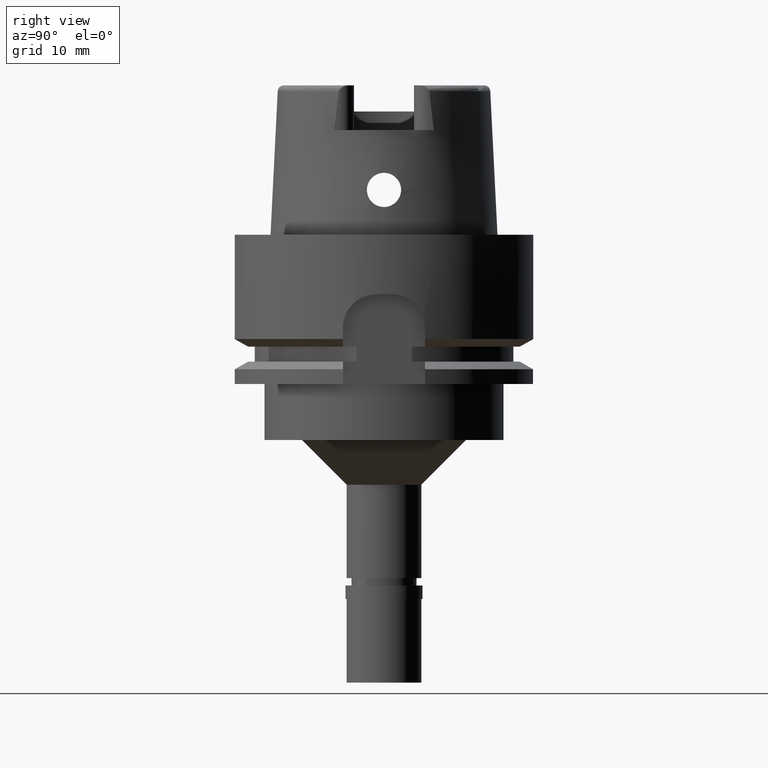
[diagram: clean part render]
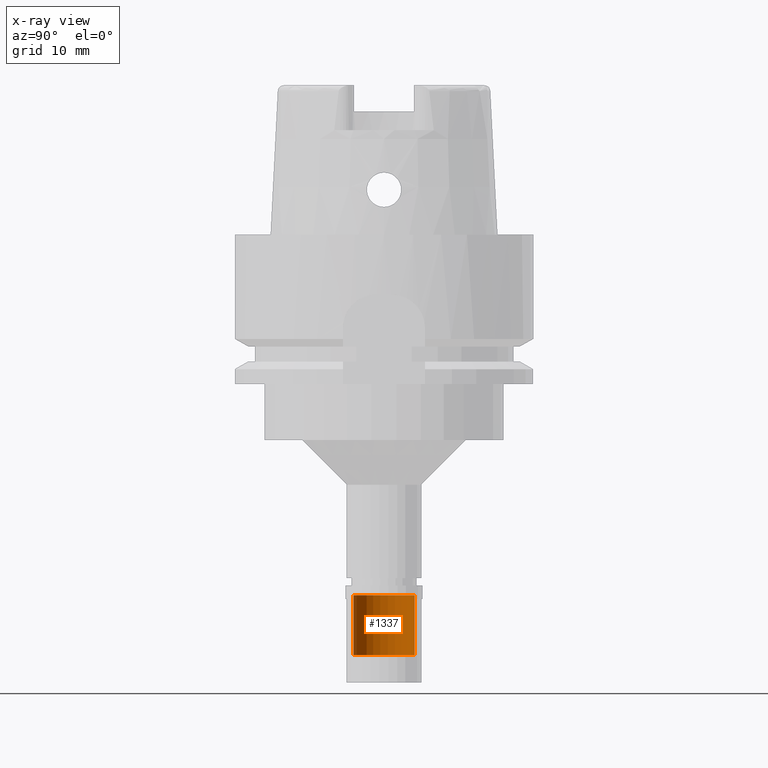
[diagram: x-ray — body ghosted, one internal face saturated and labeled with its STEP entity id]
A machine part, right view, then the same camera in x-ray: the body is ghosted and one INTERNAL B-rep face — a face not visible from any outside direction — is saturated and labeled: STEP entity #1337.
In plain terms, the highlighted cylindrical surface (edge-blend (fillet) strip) has radius 4.1 mm, axis along (0, 0, 1).
Its self-contained STEP definition (entity closure, byte-faithful):
#128 = CARTESIAN_POINT ( 'NONE',  ( 0.0000000000000000000, -4.100000000000000533, -48.30000000000000426 ) ) ;
#342 = FACE_OUTER_BOUND ( 'NONE', #3062, .T. ) ;
#387 = CARTESIAN_POINT ( 'NONE',  ( 0.0000000000000000000, 0.0000000000000000000, -60.11500000000000199 ) ) ;
#603 = DIRECTION ( 'NONE',  ( 0.0000000000000000000, -1.000000000000000000, 0.0000000000000000000 ) ) ;
#617 = EDGE_CURVE ( 'NONE', #3108, #3638, #2522, .T. ) ;
#755 = VECTOR ( 'NONE', #3707, 1000.000000000000000 ) ;
#851 = CARTESIAN_POINT ( 'NONE',  ( 0.0000000000000000000, 0.0000000000000000000, -56.30000000000000426 ) ) ;
#922 = CARTESIAN_POINT ( 'NONE',  ( 0.0000000000000000000, 4.100000000000000533, -48.30000000000000426 ) ) ;
#969 = ORIENTED_EDGE ( 'NONE', *, *, #617, .T. ) ;
#1013 = DIRECTION ( 'NONE',  ( 0.0000000000000000000, 0.0000000000000000000, -1.000000000000000000 ) ) ;
#1047 = CARTESIAN_POINT ( 'NONE',  ( 0.0000000000000000000, -4.100000000000000533, -48.30000000000000426 ) ) ;
#1083 = EDGE_CURVE ( 'NONE', #2652, #3108, #4435, .T. ) ;
#1154 = EDGE_CURVE ( 'NONE', #2652, #2539, #3771, .T. ) ;
#1250 = DIRECTION ( 'NONE',  ( 0.0000000000000000000, 0.0000000000000000000, 1.000000000000000000 ) ) ;
#1337 = ADVANCED_FACE ( 'NONE', ( #342 ), #4045, .T. ) ;
#1906 = DIRECTION ( 'NONE',  ( 0.0000000000000000000, 0.0000000000000000000, -1.000000000000000000 ) ) ;
#2066 = DIRECTION ( 'NONE',  ( 0.0000000000000000000, 0.0000000000000000000, 1.000000000000000000 ) ) ;
#2522 = LINE ( 'NONE', #922, #755 ) ;
#2539 = VERTEX_POINT ( 'NONE', #3025 ) ;
#2652 = VERTEX_POINT ( 'NONE', #1047 ) ;
#2695 = CARTESIAN_POINT ( 'NONE',  ( 0.0000000000000000000, 4.100000000000000533, -48.30000000000000426 ) ) ;
#3025 = CARTESIAN_POINT ( 'NONE',  ( 0.0000000000000000000, -4.100000000000000533, -56.30000000000000426 ) ) ;
#3062 = EDGE_LOOP ( 'NONE', ( #3192, #4090, #4754, #969 ) ) ;
#3108 = VERTEX_POINT ( 'NONE', #2695 ) ;
#3192 = ORIENTED_EDGE ( 'NONE', *, *, #3630, .T. ) ;
#3226 = CIRCLE ( 'NONE', #4611, 4.100000000000000533 ) ;
#3240 = CARTESIAN_POINT ( 'NONE',  ( 0.0000000000000000000, 4.100000000000000533, -56.30000000000000426 ) ) ;
#3263 = DIRECTION ( 'NONE',  ( 0.0000000000000000000, 1.000000000000000000, 0.0000000000000000000 ) ) ;
#3602 = DIRECTION ( 'NONE',  ( 0.0000000000000000000, 1.000000000000000000, 0.0000000000000000000 ) ) ;
#3630 = EDGE_CURVE ( 'NONE', #3638, #2539, #3226, .T. ) ;
#3638 = VERTEX_POINT ( 'NONE', #3240 ) ;
#3707 = DIRECTION ( 'NONE',  ( 0.0000000000000000000, 0.0000000000000000000, -1.000000000000000000 ) ) ;
#3771 = LINE ( 'NONE', #128, #4604 ) ;
#3795 = CARTESIAN_POINT ( 'NONE',  ( 0.0000000000000000000, 0.0000000000000000000, -48.30000000000000426 ) ) ;
#4045 = CYLINDRICAL_SURFACE ( 'NONE', #4858, 4.100000000000000533 ) ;
#4090 = ORIENTED_EDGE ( 'NONE', *, *, #1154, .F. ) ;
#4435 = CIRCLE ( 'NONE', #5112, 4.100000000000000533 ) ;
#4604 = VECTOR ( 'NONE', #1906, 1000.000000000000000 ) ;
#4611 = AXIS2_PLACEMENT_3D ( 'NONE', #851, #2066, #3263 ) ;
#4754 = ORIENTED_EDGE ( 'NONE', *, *, #1083, .T. ) ;
#4858 = AXIS2_PLACEMENT_3D ( 'NONE', #387, #1250, #3602 ) ;
#5112 = AXIS2_PLACEMENT_3D ( 'NONE', #3795, #1013, #603 ) ;